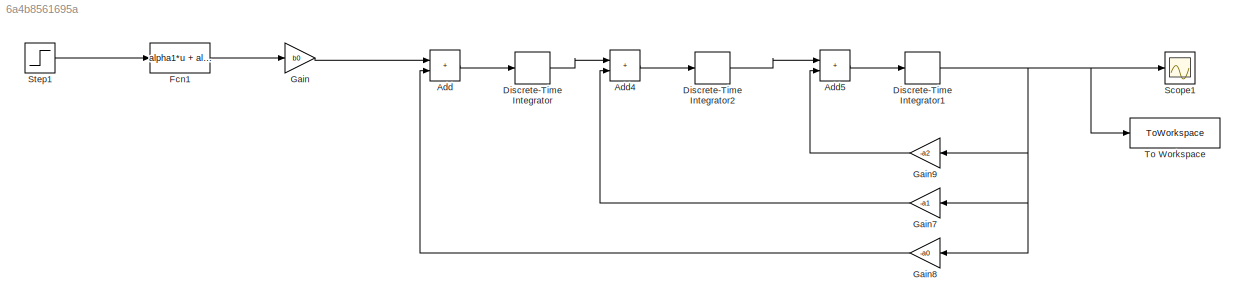
MODEL slx_6a4b8561695a
KIND model
CONFIG AbsTol = auto
CONFIG EnableMultiTasking = off
CONFIG FixedStep = auto
CONFIG MaxStep = auto
CONFIG MinStep = auto
CONFIG RelTol = 1e-3
CONFIG SampleTimeConstraint = Unconstrained
CONFIG SolverName = VariableStepAuto
CONFIG StartTime = 0.0
CONFIG StopTime = 200
BLOCK [Sum] Add
  IconShape = rectangular
BLOCK [Sum] Add4
  IconShape = rectangular
BLOCK [Sum] Add5
  IconShape = rectangular
BLOCK [DiscreteIntegrator] Discrete-Time Integrator
  ICPrevOutput = DiscIntNeverNeededParam
  ICPrevScaledInput = DiscIntNeverNeededParam
  InitialConditionSetting = Auto
  SampleTime = T
BLOCK [DiscreteIntegrator] Discrete-Time Integrator1
  ICPrevOutput = DiscIntNeverNeededParam
  ICPrevScaledInput = DiscIntNeverNeededParam
  InitialConditionSetting = Auto
  SampleTime = T
BLOCK [DiscreteIntegrator] Discrete-Time Integrator2
  ICPrevOutput = DiscIntNeverNeededParam
  ICPrevScaledInput = DiscIntNeverNeededParam
  InitialConditionSetting = Auto
  SampleTime = T
BLOCK [Fcn] Fcn1
  Expr = alpha1*u + alpha2*u^2 + alpha3*u^3 + alpha4*u^4
BLOCK [Gain] Gain
  Gain = b0
BLOCK [Gain] Gain7
  Gain = -a1
  NameLocation = top
BLOCK [Gain] Gain8
  Gain = -a0
  NameLocation = top
BLOCK [Gain] Gain9
  Gain = -a2
  NameLocation = top
BLOCK [Scope] Scope1
  Floating = off
  NumInputPorts = 1
  ScopeSpecificationString = Simulink.scopes.TimeScopeBlockCfg('CurrentConfiguration', extmgr.ConfigurationSet(extmgr.Configuration('Core','General UI',true),extmgr.Configuration('Core','Source UI',true),extmgr.Configuration('Sources','WiredSimulink',true,'DataLoggingVariableName','ScopeData1'),extmgr.Configuration('Visuals','Time Domain',true,'SerializedDisplays',{struct('MinYLimReal','-0.94624','MaxYLimReal','0.02661','YLab...<+1459ch>
BLOCK [Step] Step1
  SampleTime = 0
BLOCK [ToWorkspace] To Workspace
  FixptAsFi = on
  MaxDataPoints = inf
  SampleTime = -1
  SaveFormat = Structure With Time
  VariableName = simout
LINE Add4:1 -> Discrete-Time Integrator2:1
LINE Add5:1 -> Discrete-Time Integrator1:1
LINE Add:1 -> Discrete-Time Integrator:1
NET Discrete-Time Integrator1:1 -> Gain7:1, Gain8:1, Gain9:1, Scope1:1, To Workspace:1
LINE Discrete-Time Integrator2:1 -> Add5:1
LINE Discrete-Time Integrator:1 -> Add4:1
LINE Fcn1:1 -> Gain:1
LINE Gain7:1 -> Add4:2
LINE Gain8:1 -> Add:2
LINE Gain9:1 -> Add5:2
LINE Gain:1 -> Add:1
LINE Step1:1 -> Fcn1:1
note: NET lines group one-source signal fan-out (src -> all destinations, sorted); 1:1 wires keep LINE
